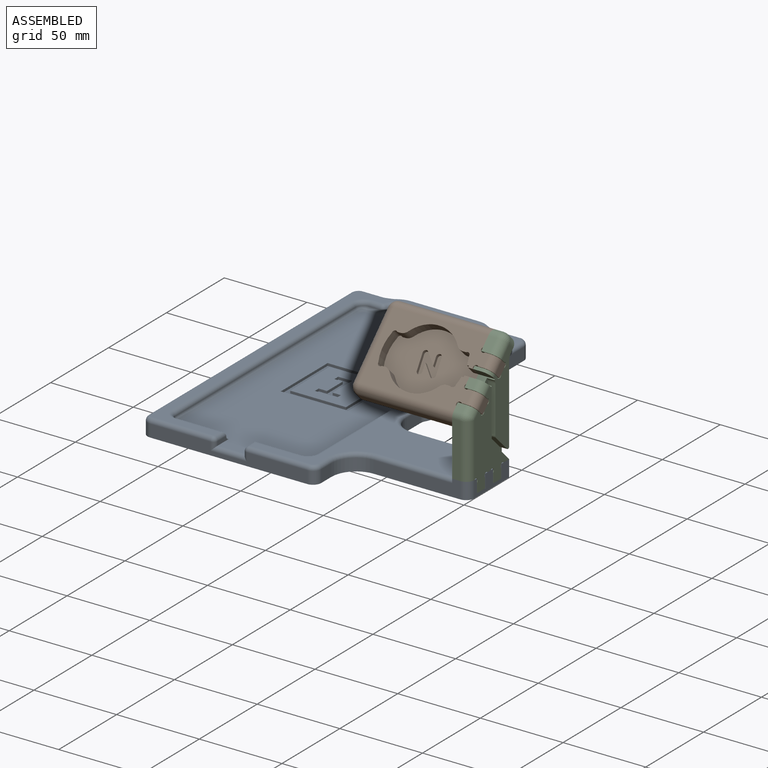
[diagram: assembled view]
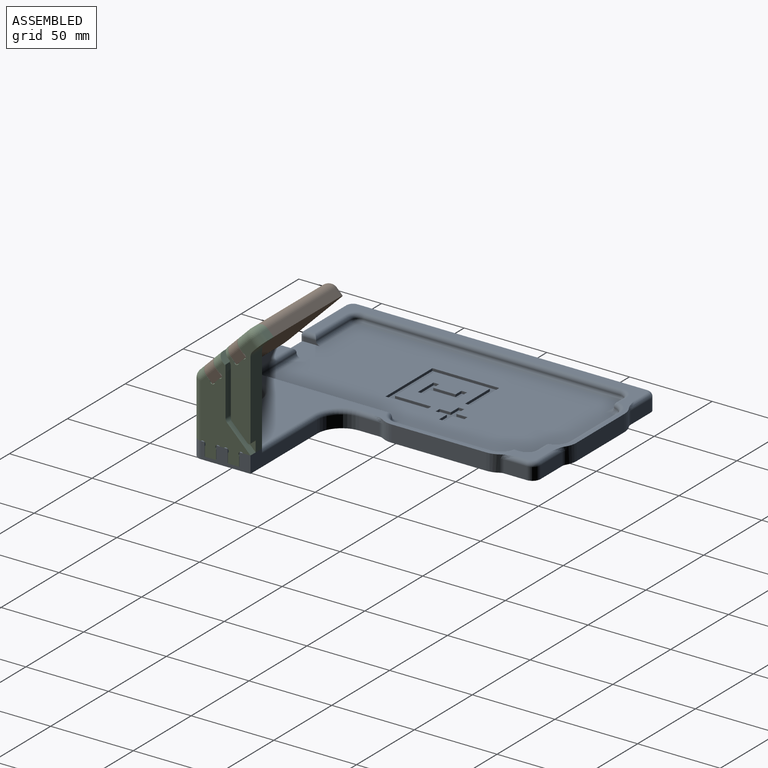
[diagram: assembled view, second angle]
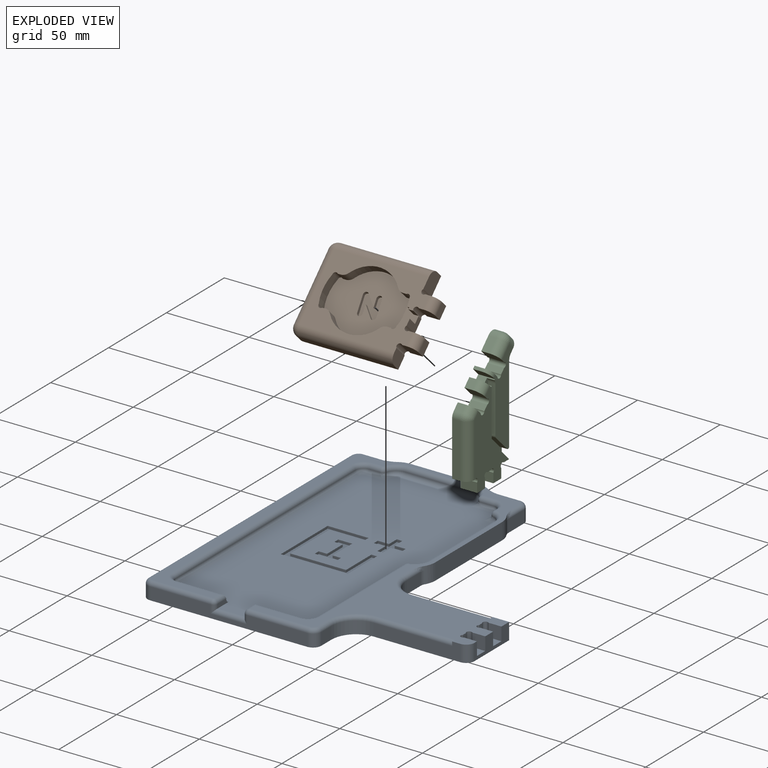
[diagram: exploded view]
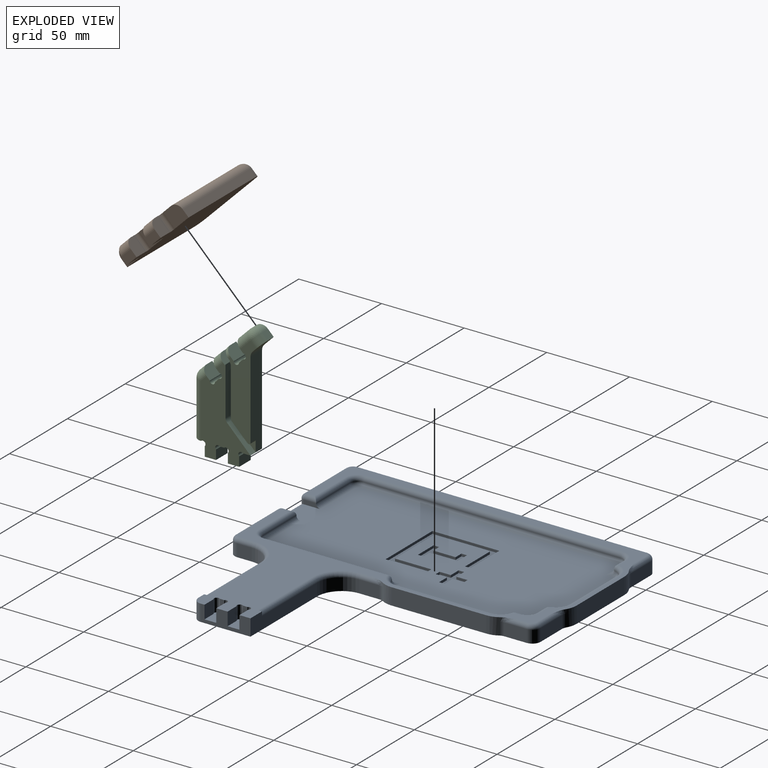
[diagram: exploded view, second angle]
ASSEMBLY  parts=3 mates=2
PART A: 154 faces, bbox 177.9x188.2x15 mm
  f0: plane 177.5x87.5mm, normal (0,0,1), area 13203.5mm2, adj f10,f11,f28,f29,f30,f31,f32,f33
  f1: plane 185x175mm, normal (0,0,1), area 4611.4mm2, adj f2,f3,f4,f5,f6,f7,f8,f9
  f2: plane 8x2.66mm, normal (1,0,0), area 21.3mm2, adj f1,f27,f116,f117
  f3: plane 8x7.83mm, normal (0,-1,0), area 62.6mm2, adj f1,f8,f27,f117
  f4: plane 8x7.83mm, normal (0,1,0), area 62.6mm2, adj f1,f8,f27,f116
  f5: plane 8x2.66mm, normal (1,0,0), area 21.3mm2, adj f1,f26,f114,f115
  f6: plane 8x7.83mm, normal (0,-1,0), area 62.6mm2, adj f1,f8,f26,f115
  f7: plane 8x7.83mm, normal (0,1,0), area 62.6mm2, adj f1,f8,f26,f114
  f8: plane 30x10mm, normal (1,0,0), area 185.6mm2, adj f1,f3,f4,f6,f7,f21,f25,f26
  f9: cylinder r=2.5mm len=47.5mm, axis (-1,0,0), area 186.5mm2, adj f1,f20,f80,f112
  f10: cylinder r=2.5mm len=80mm, axis (0,1,0), area 302.2mm2, adj f0,f12,f34,f60,f66
  f11: cylinder r=2.5mm len=12.5mm, axis (-1,0,0), area 37.2mm2, adj f0,f13,f38,f65,f73
  f12: cylinder r=2.5mm len=75.32mm, axis (0,-1,0), area 295.8mm2, adj f1,f10,f41,f67
  f13: cylinder r=2.5mm len=7.82mm, axis (1,0,0), area 30.7mm2, adj f1,f11,f43,f74
  f14: plane 13.49x7.5mm, normal (1,0,0), area 101.1mm2, adj f25,f95,f100,f106
  f15: plane 17.24x7.5mm, normal (0,1,0), area 129.3mm2, adj f25,f87,f102,f108
  f16: plane 95x7.5mm, normal (0,-1,0), area 602.5mm2, adj f25,f82,f84,f85,f86,f90,f96,f98
  f17: plane 175x7.5mm, normal (-1,0,0), area 1312.5mm2, adj f25,f89,f96,f102
  f18: plane 8.75x7.5mm, normal (1,0,0), area 65.6mm2, adj f19,f25,f81,f98
  f19: cylinder r=15mm len=15mm, axis (0,0,-1), area 176.7mm2, adj f18,f20,f25,f80
  f20: plane 52.5x10mm, normal (0,-1,0), area 406.2mm2, adj f1,f9,f19,f25,f112,f118
  f21: plane 57.5x10mm, normal (0,1,0), area 456.2mm2, adj f1,f8,f22,f25,f91,f113
  f22: cylinder r=15mm len=15mm, axis (0,0,-1), area 176.7mm2, adj f21,f23,f25,f92
  f23: plane 12.24x7.5mm, normal (1,0,0), area 91.8mm2, adj f22,f25,f93,f104
  f24: plane 18.49x7.5mm, normal (0,1,0), area 138.6mm2, adj f25,f94,f100,f110
  f25: plane 187.5x177.5mm, normal (0,0,-1), area 22331mm2, adj f8,f14,f15,f16,f17,f18,f19,f20
  f26: plane 10.54x8.08mm, normal (0,0,1), area 74.9mm2, adj f5,f6,f7,f8,f114,f115
  f27: plane 10.54x8.08mm, normal (0,0,1), area 74.9mm2, adj f2,f3,f4,f8,f116,f117
  f28: plane 10x2.5mm, normal (1,0,0), area 20.1mm2, adj f0,f30,f46,f86
  f29: plane 10x2.5mm, normal (-1,0,0), area 20.1mm2, adj f0,f32,f39,f84
  f30: cylinder r=2.5mm len=29mm, axis (1,0,0), area 113.9mm2, adj f0,f28,f31,f48
  f31: torus R=2.5mm, axis (0,0,1), area 25.2mm2, adj f0,f30,f33,f49
  f32: cylinder r=2.5mm len=29mm, axis (1,0,0), area 113.9mm2, adj f0,f29,f34,f40
  f33: cylinder r=2.5mm len=155mm, axis (0,-1,0), area 608.7mm2, adj f0,f31,f35,f47
  f34: torus R=2.5mm, axis (0,0,1), area 25.2mm2, adj f0,f10,f32,f41
  f35: torus R=2.5mm, axis (0,0,1), area 25.2mm2, adj f0,f33,f37,f45
  f36: cylinder r=2.5mm len=7.5mm, axis (0,1,0), area 17.5mm2, adj f0,f38,f42,f56,f71
  f37: cylinder r=2.5mm len=11.25mm, axis (-1,0,0), area 32.3mm2, adj f0,f35,f44,f61,f78
  f38: torus R=2.5mm, axis (0,0,1), area 25.2mm2, adj f0,f11,f36,f43
  f39: cylinder r=2.5mm len=7.5mm, axis (0,-1,0), area 24.5mm2, adj f1,f29,f40,f83
  f40: cylinder r=2.5mm len=29mm, axis (-1,0,0), area 109mm2, adj f1,f32,f39,f41
  f41: torus R=7.5mm, axis (0,0,1), area 36.4mm2, adj f1,f12,f34,f40
  f42: cylinder r=2.5mm len=2.82mm, axis (0,-1,0), area 11.1mm2, adj f1,f36,f43,f72
  f43: torus R=7.5mm, axis (0,0,1), area 36.4mm2, adj f1,f13,f38,f42
  f44: cylinder r=2.5mm len=6.57mm, axis (1,0,0), area 25.8mm2, adj f1,f37,f45,f79
  f45: torus R=7.5mm, axis (0,0,1), area 36.4mm2, adj f1,f35,f44,f47
  f46: cylinder r=2.5mm len=7.5mm, axis (0,1,0), area 24.5mm2, adj f1,f28,f48,f88
  f47: cylinder r=2.5mm len=155mm, axis (0,1,0), area 608.7mm2, adj f1,f33,f45,f49
  f48: cylinder r=2.5mm len=29mm, axis (-1,0,0), area 109mm2, adj f1,f30,f46,f49
  f49: torus R=7.5mm, axis (0,0,1), area 36.4mm2, adj f1,f31,f47,f48
  f50: cylinder r=12.5mm len=10mm, axis (0,0,1), area 68.4mm2, adj f1,f25,f51,f108,f109
  f51: plane 41.25x10mm, normal (0,1,0), area 412.5mm2, adj f1,f25,f50,f52
  f52: cylinder r=12.5mm len=10mm, axis (0,0,1), area 68.4mm2, adj f1,f25,f51,f110,f111
  f53: plane 57.5x10mm, normal (1,0,0), area 575mm2, adj f1,f25,f54,f55
  f54: cylinder r=12.5mm len=10mm, axis (0,0,1), area 68.4mm2, adj f1,f25,f53,f104,f105
  f55: cylinder r=12.5mm len=10mm, axis (0,0,1), area 68.4mm2, adj f1,f25,f53,f106,f107
  f56: cylinder r=2.5mm len=2.5mm, axis (1,0,0), area 1.8mm2, adj f0,f36,f57,f71
  f57: torus R=5mm, axis (0,0,1), area 38.3mm2, adj f0,f56,f58,f70,f71
  f58: cylinder r=2.5mm len=57.5mm, axis (0,-1,0), area 225.8mm2, adj f0,f57,f59,f69
  f59: torus R=5mm, axis (0,0,1), area 38.3mm2, adj f0,f58,f60,f66,f68
  f60: cylinder r=2.5mm len=2.5mm, axis (-1,0,0), area 1.8mm2, adj f0,f10,f59,f66
  f61: cylinder r=2.5mm len=2.5mm, axis (0,1,0), area 1.8mm2, adj f0,f37,f62,f78
  f62: torus R=5mm, axis (0,0,1), area 38.3mm2, adj f0,f61,f63,f77,f78
  f63: cylinder r=2.5mm len=41.25mm, axis (1,0,0), area 162mm2, adj f0,f62,f64,f76
  f64: torus R=5mm, axis (0,0,1), area 38.3mm2, adj f0,f63,f65,f73,f75
  f65: cylinder r=2.5mm len=2.5mm, axis (0,-1,0), area 1.8mm2, adj f0,f11,f64,f73
  f66: bspline ~4.92x4.19mm, area 9.5mm2, adj f10,f59,f60,f67
  f67: sphere r=2.5mm, area 12.2mm2, adj f12,f66,f68
  f68: torus R=10mm, axis (0,0,1), area 43.5mm2, adj f1,f59,f67,f69
  f69: cylinder r=2.5mm len=57.5mm, axis (0,-1,0), area 225.8mm2, adj f1,f58,f68,f70
  f70: torus R=10mm, axis (0,0,1), area 43.5mm2, adj f1,f57,f69,f72
  f71: bspline ~4.92x4.19mm, area 9.5mm2, adj f36,f56,f57,f72
  f72: sphere r=2.5mm, area 12.2mm2, adj f42,f70,f71
  f73: bspline ~4.92x4.19mm, area 9.5mm2, adj f11,f64,f65,f74
  f74: sphere r=2.5mm, area 12.2mm2, adj f13,f73,f75
  f75: torus R=10mm, axis (0,0,1), area 43.5mm2, adj f1,f64,f74,f76
  f76: cylinder r=2.5mm len=41.25mm, axis (1,0,0), area 162mm2, adj f1,f63,f75,f77
  f77: torus R=10mm, axis (0,0,1), area 43.5mm2, adj f1,f62,f76,f79
  f78: bspline ~4.92x4.19mm, area 9.5mm2, adj f37,f61,f62,f79
  f79: sphere r=2.5mm, area 12.2mm2, adj f44,f77,f78
  f80: torus R=17.5mm, axis (0,0,1), area 98.1mm2, adj f1,f9,f19,f81
  f81: cylinder r=2.5mm len=8.75mm, axis (0,-1,0), area 34.4mm2, adj f1,f18,f80,f99
  f82: cylinder r=2.5mm len=36.5mm, axis (-1,0,0), area 143.3mm2, adj f1,f16,f83,f99
  f83: sphere r=2.5mm, area 9.8mm2, adj f39,f82,f84
  f84: cylinder r=2.5mm len=5mm, axis (0,0,1), area 14.7mm2, adj f16,f29,f83,f85
  f85: cylinder r=2.5mm len=22mm, axis (-1,0,0), area 76.6mm2, adj f0,f16,f84,f86
  f86: cylinder r=2.5mm len=5mm, axis (0,0,-1), area 14.7mm2, adj f16,f28,f85,f88
  f87: cylinder r=2.5mm len=17.24mm, axis (1,0,0), area 54.3mm2, adj f1,f15,f103,f109
  f88: sphere r=2.5mm, area 13.4mm2, adj f46,f86,f90
  f89: cylinder r=2.5mm len=175mm, axis (0,1,0), area 687.2mm2, adj f1,f17,f97,f103
  f90: cylinder r=2.5mm len=36.5mm, axis (-1,0,0), area 143.3mm2, adj f1,f16,f88,f97
  f91: cylinder r=2.5mm len=47.5mm, axis (1,0,0), area 186.5mm2, adj f1,f21,f92,f113
  f92: torus R=17.5mm, axis (0,0,1), area 98.1mm2, adj f1,f22,f91,f93
  f93: cylinder r=2.5mm len=12.24mm, axis (0,-1,0), area 34.7mm2, adj f1,f23,f92,f105
  f94: cylinder r=2.5mm len=18.49mm, axis (1,0,0), area 59.2mm2, adj f1,f24,f101,f111
  f95: cylinder r=2.5mm len=13.49mm, axis (0,-1,0), area 39.6mm2, adj f1,f14,f101,f107
  f96: cylinder r=5mm len=7.5mm, axis (0,0,-1), area 58.9mm2, adj f16,f17,f25,f97
  f97: torus R=2.5mm, axis (0,0,1), area 25.2mm2, adj f1,f89,f90,f96
  f98: cylinder r=5mm len=7.5mm, axis (0,0,1), area 58.9mm2, adj f16,f18,f25,f99
  f99: torus R=2.5mm, axis (0,0,1), area 25.2mm2, adj f1,f81,f82,f98
  f100: cylinder r=5mm len=7.5mm, axis (0,0,-1), area 58.9mm2, adj f14,f24,f25,f101
  f101: torus R=2.5mm, axis (0,0,1), area 25.2mm2, adj f1,f94,f95,f100
  f102: cylinder r=5mm len=7.5mm, axis (0,0,1), area 58.9mm2, adj f15,f17,f25,f103
  f103: torus R=2.5mm, axis (0,0,1), area 25.2mm2, adj f1,f87,f89,f102
  f104: cylinder r=5mm len=7.5mm, axis (0,0,1), area 20.3mm2, adj f23,f25,f54,f105
  f105: bspline ~9.82x7.96mm, area 13.2mm2, adj f1,f54,f93,f104
  f106: cylinder r=5mm len=7.5mm, axis (0,0,1), area 20.3mm2, adj f14,f25,f55,f107
  f107: bspline ~9.82x7.96mm, area 13.2mm2, adj f1,f55,f95,f106
  f108: cylinder r=5mm len=7.5mm, axis (0,0,1), area 20.3mm2, adj f15,f25,f50,f109
  f109: bspline ~9.82x7.96mm, area 13.2mm2, adj f1,f50,f87,f108
  f110: cylinder r=5mm len=7.5mm, axis (0,0,1), area 20.3mm2, adj f24,f25,f52,f111
  f111: bspline ~9.82x7.96mm, area 13.2mm2, adj f1,f52,f94,f110
  f112: plane 2.5x2.5mm, normal (-1,0,0), area 1.3mm2, adj f1,f9,f20
  f113: plane 2.5x2.5mm, normal (-1,0,0), area 1.3mm2, adj f1,f21,f91
  f114: cylinder r=1.59mm len=8mm, axis (0,0,-1), area 39.9mm2, adj f1,f5,f7,f26
  f115: cylinder r=1.59mm len=8mm, axis (0,0,-1), area 39.9mm2, adj f1,f5,f6,f26
  f116: cylinder r=1.59mm len=8mm, axis (0,0,-1), area 39.9mm2, adj f1,f2,f4,f27
  f117: cylinder r=1.59mm len=8mm, axis (0,0,-1), area 39.9mm2, adj f1,f2,f3,f27
  f118: cylinder r=5mm len=10mm, axis (0,0,-1), area 78.5mm2, adj f1,f8,f20,f25
  f119: plane 24.75x1.5mm, normal (0,-1,0), area 37.1mm2, adj f0,f120,f128,f129
  f120: plane 40.5x1.5mm, normal (1,0,0), area 60.8mm2, adj f0,f119,f121,f129
  f121: plane 40.5x1.5mm, normal (0,1,0), area 60.7mm2, adj f0,f120,f122,f129
  f122: plane 25.31x1.5mm, normal (-1,0,0), area 38mm2, adj f0,f121,f123,f129
  f123: plane 3.38x1.5mm, normal (0,-1,0), area 5.1mm2, adj f0,f122,f124,f129
  f124: plane 21.94x1.5mm, normal (1,0,0), area 32.9mm2, adj f0,f123,f125,f129
  f125: plane 33.75x1.5mm, normal (0,-1,0), area 50.6mm2, adj f0,f124,f126,f129
  f126: plane 33.75x1.5mm, normal (-1,0,0), area 50.6mm2, adj f0,f125,f127,f129
  f127: plane 21.38x1.5mm, normal (0,1,0), area 32.1mm2, adj f0,f126,f128,f129
  f128: plane 3.38x1.5mm, normal (-1,0,0), area 5.1mm2, adj f0,f119,f127,f129
  f129: plane 40.5x40.5mm, normal (0,0,1), area 408.2mm2, adj f119,f120,f121,f122,f123,f124,f125,f126
  f130: plane 8.44x1.5mm, normal (0,-1,0), area 12.7mm2, adj f0,f131,f139,f140
  f131: plane 3.38x1.5mm, normal (1,0,0), area 5.1mm2, adj f0,f130,f132,f140
  f132: plane 5.06x1.5mm, normal (0,1,0), area 7.6mm2, adj f0,f131,f133,f140
  f133: plane 13.5x1.5mm, normal (1,0,0), area 20.3mm2, adj f0,f132,f134,f140
  f134: plane 5.06x1.5mm, normal (0,-1,0), area 7.6mm2, adj f0,f133,f135,f140
  f135: plane 3.38x1.5mm, normal (1,0,0), area 5.1mm2, adj f0,f134,f136,f140
  f136: plane 13.5x1.5mm, normal (0,1,0), area 20.3mm2, adj f0,f135,f137,f140
  f137: plane 3.38x1.5mm, normal (-1,0,0), area 5.1mm2, adj f0,f136,f138,f140
  f138: plane 5.06x1.5mm, normal (0,-1,0), area 7.6mm2, adj f0,f137,f139,f140
  f139: plane 16.88x1.5mm, normal (-1,0,0), area 25.3mm2, adj f0,f130,f138,f140
  f140: plane 20.25x13.5mm, normal (0,0,1), area 119.6mm2, adj f130,f131,f132,f133,f134,f135,f136,f137
  f141: plane 6.75x1.5mm, normal (-1,0,0), area 10.1mm2, adj f0,f142,f152,f153
  f142: plane 3.38x1.5mm, normal (0,-1,0), area 5.1mm2, adj f0,f141,f143,f153
  f143: plane 6.75x1.5mm, normal (1,0,0), area 10.1mm2, adj f0,f142,f144,f153
  f144: plane 6.75x1.5mm, normal (0,-1,0), area 10.1mm2, adj f0,f143,f145,f153
  f145: plane 3.38x1.5mm, normal (1,0,0), area 5.1mm2, adj f0,f144,f146,f153
  f146: plane 6.75x1.5mm, normal (0,1,0), area 10.1mm2, adj f0,f145,f147,f153
  f147: plane 6.75x1.5mm, normal (1,0,0), area 10.1mm2, adj f0,f146,f148,f153
  f148: plane 3.38x1.5mm, normal (0,1,0), area 5.1mm2, adj f0,f147,f149,f153
  f149: plane 6.75x1.5mm, normal (-1,0,0), area 10.1mm2, adj f0,f148,f150,f153
  f150: plane 6.75x1.5mm, normal (0,1,0), area 10.1mm2, adj f0,f149,f151,f153
  f151: plane 3.38x1.5mm, normal (-1,0,0), area 5.1mm2, adj f0,f150,f152,f153
  f152: plane 6.75x1.5mm, normal (0,-1,0), area 10.1mm2, adj f0,f141,f151,f153
  f153: plane 16.88x16.88mm, normal (0,0,1), area 102.5mm2, adj f141,f142,f143,f144,f145,f146,f147,f148
PART B: 62 faces, bbox 72.5x42.1x42.1 mm
  f0: plane 62.5x30mm, normal (0,-0.71,0.71), area 1144.2mm2, adj f1,f2,f3,f4,f5,f6,f7,f8
  f1: plane 4.6x4.6mm, normal (0,0.71,0.71), area 13.7mm2, adj f0,f31,f40,f50
  f2: cylinder r=24.75mm len=7.91mm, axis (0,-0.71,0.71), area 31.3mm2, adj f0,f31,f41,f50
  f3: cylinder r=24.75mm len=16.33mm, axis (0,-0.71,0.71), area 110mm2, adj f0,f31,f48,f49
  f4: plane 4.6x4.6mm, normal (0,0.71,0.71), area 11.7mm2, adj f0,f31,f38,f49
  f5: plane 4.6x4.6mm, normal (0,-0.71,-0.71), area 11.7mm2, adj f0,f31,f37,f48
  f6: cylinder r=24.75mm len=7.91mm, axis (0,-0.71,0.71), area 31.3mm2, adj f0,f31,f34,f47
  f7: plane 4.6x4.6mm, normal (0,-0.71,-0.71), area 13.7mm2, adj f0,f31,f35,f47
  f8: plane 12.56x10.48mm, normal (1,0,0), area 72.2mm2, adj f0,f16,f22,f23,f46
  f9: plane 7.76x7.07mm, normal (0,-0.71,-0.71), area 72.2mm2, adj f0,f16,f17,f30,f46
  f10: plane 12.84x9.81mm, normal (1,0,0), area 53.7mm2, adj f0,f16,f31,f32,f44,f45
  f11: plane 7.76x7.07mm, normal (0,0.71,0.71), area 72.2mm2, adj f0,f16,f17,f30,f45
  f12: plane 4.6x4.6mm, normal (0,-0.71,-0.71), area 18.4mm2, adj f0,f31,f33,f44
  f13: plane 7.76x7.07mm, normal (0,-0.71,-0.71), area 72.2mm2, adj f0,f16,f18,f29,f44
  f14: plane 15.44x13.37mm, normal (1,0,0), area 112.9mm2, adj f0,f16,f19,f21,f43
  f15: plane 7.76x7.07mm, normal (0,0.71,0.71), area 72.2mm2, adj f0,f16,f18,f29,f43
  f16: plane 72.5x37.07mm, normal (0,0.71,-0.71), area 3417.2mm2, adj f8,f9,f10,f11,f13,f14,f15,f17
  f17: plane 9.09x9.09mm, normal (1,0,0), area 39.2mm2, adj f9,f11,f16,f30
  f18: plane 9.09x9.09mm, normal (1,0,0), area 39.2mm2, adj f13,f15,f16,f29
  f19: plane 57.5x3.54mm, normal (0,0.71,0.71), area 287.5mm2, adj f14,f16,f21,f28
  f20: plane 33.54x33.54mm, normal (-1,0,0), area 212.1mm2, adj f16,f24,f26,f28
  f21: cylinder r=5mm len=57.5mm, axis (-1,0,0), area 451.6mm2, adj f0,f14,f19,f27
  f22: plane 57.5x3.54mm, normal (0,-0.71,-0.71), area 287.5mm2, adj f8,f16,f23,f24
  f23: cylinder r=5mm len=57.5mm, axis (1,0,0), area 451.6mm2, adj f0,f8,f22,f25
  f24: cylinder r=5mm len=7.07mm, axis (0,0.71,-0.71), area 39.3mm2, adj f16,f20,f22,f25
  f25: sphere r=5mm, area 39.3mm2, adj f23,f24,f26
  f26: cylinder r=5mm len=33.54mm, axis (0,-0.71,-0.71), area 333.2mm2, adj f0,f20,f25,f27
  f27: sphere r=5mm, area 39.3mm2, adj f21,f26,f28
  f28: cylinder r=5mm len=7.07mm, axis (0,-0.71,0.71), area 39.3mm2, adj f16,f19,f20,f27
  f29: cylinder r=5mm len=9.09mm, axis (0,0.71,0.71), area 61.7mm2, adj f0,f13,f15,f18
  f30: cylinder r=5mm len=9.09mm, axis (0,0.71,0.71), area 61.7mm2, adj f0,f9,f11,f17
  f31: plane 53.5x26.52mm, normal (0,-0.71,0.71), area 1261.3mm2, adj f1,f2,f3,f4,f5,f6,f7,f10
  f32: plane 4.6x4.6mm, normal (0,0.71,0.71), area 19.5mm2, adj f0,f10,f31,f42
  f33: plane 5.3x5.3mm, normal (-1,0,0), area 6.5mm2, adj f0,f12,f31,f34
  f34: plane 4.6x4.6mm, normal (0,-0.71,-0.71), area 7.9mm2, adj f0,f6,f31,f33
  f35: cylinder r=5mm len=5.97mm, axis (0,-0.71,0.71), area 29.7mm2, adj f0,f7,f31,f36
  f36: cylinder r=18.75mm len=29.7mm, axis (0,-0.71,0.71), area 222.8mm2, adj f0,f31,f35,f37
  f37: cylinder r=5mm len=5.97mm, axis (0,-0.71,0.71), area 29.7mm2, adj f0,f5,f31,f36
  f38: cylinder r=5mm len=5.97mm, axis (0,-0.71,0.71), area 29.7mm2, adj f0,f4,f31,f39
  f39: cylinder r=18.75mm len=29.7mm, axis (0,-0.71,0.71), area 222.8mm2, adj f0,f31,f38,f40
  f40: cylinder r=5mm len=5.97mm, axis (0,-0.71,0.71), area 29.7mm2, adj f0,f1,f31,f39
  f41: plane 4.6x4.6mm, normal (0,0.71,0.71), area 7.9mm2, adj f0,f2,f31,f42
  f42: plane 5.3x5.3mm, normal (-1,0,0), area 6.5mm2, adj f0,f31,f32,f41
  f43: cylinder r=1.59mm len=8.99mm, axis (0,0.71,-0.71), area 49.9mm2, adj f0,f14,f15,f16
  f44: cylinder r=1.59mm len=8.99mm, axis (0,0.71,-0.71), area 48.1mm2, adj f0,f10,f12,f13,f16,f31
  f45: cylinder r=1.59mm len=8.99mm, axis (0,0.71,-0.71), area 49.9mm2, adj f0,f10,f11,f16
  f46: cylinder r=1.59mm len=8.99mm, axis (0,0.71,-0.71), area 49.9mm2, adj f0,f8,f9,f16
  f47: cylinder r=1.59mm len=5.94mm, axis (0,0.71,-0.71), area 25mm2, adj f0,f6,f7,f31
  f48: cylinder r=1.59mm len=5.77mm, axis (0,0.71,-0.71), area 24.8mm2, adj f0,f3,f5,f31
  f49: cylinder r=1.59mm len=5.77mm, axis (0,0.71,-0.71), area 24.8mm2, adj f0,f3,f4,f31
  f50: cylinder r=1.59mm len=5.94mm, axis (0,0.71,-0.71), area 25mm2, adj f0,f1,f2,f31
  f51: plane 4.97x4.97mm, normal (0.99,0.1,0.1), area 10.2mm2, adj f31,f52,f60,f61
  f52: plane 6.14x5.91mm, normal (-0.72,-0.49,-0.49), area 17.7mm2, adj f31,f51,f53,f61
  f53: cylinder r=1.6mm len=2.75mm, axis (0,-0.71,0.71), area 8mm2, adj f31,f52,f54,f61
  f54: plane 8.42x8.42mm, normal (0.99,0.1,0.1), area 20mm2, adj f31,f53,f55,f61
  f55: cylinder r=1.6mm len=3.18mm, axis (0,-0.71,0.71), area 10.1mm2, adj f31,f54,f56,f61
  f56: plane 4.97x4.97mm, normal (-0.99,-0.1,-0.1), area 10.2mm2, adj f31,f55,f57,f61
  f57: plane 6.14x5.91mm, normal (0.72,0.49,0.49), area 17.7mm2, adj f31,f56,f58,f61
  f58: cylinder r=1.6mm len=2.75mm, axis (0,-0.71,0.71), area 8mm2, adj f31,f57,f59,f61
  f59: plane 8.42x8.42mm, normal (-0.99,-0.1,-0.1), area 20mm2, adj f31,f58,f60,f61
  f60: cylinder r=1.6mm len=3.18mm, axis (0,-0.71,0.71), area 10.1mm2, adj f31,f51,f59,f61
  f61: plane 12.76x9.27mm, normal (0,-0.71,0.71), area 106.8mm2, adj f51,f52,f53,f54,f55,f56,f57,f58
PART C: 57 faces, bbox 10x42.1x75.9 mm
  f0: plane 5x4.22mm, normal (0,-0.71,0.71), area 29.8mm2, adj f3,f4,f14,f37
  f1: plane 54.34x30mm, normal (1,0,0), area 774.9mm2, adj f3,f5,f6,f7,f8,f9,f10,f11
  f2: plane 56.99x16.94mm, normal (1,0,0), area 523.7mm2, adj f15,f16,f17,f22,f24,f28,f30,f32
  f3: cylinder r=5mm len=7.75mm, axis (0,-0.71,-0.71), area 46.8mm2, adj f0,f1,f14,f37
  f4: plane 75.93x42.07mm, normal (-1,0,0), area 1788mm2, adj f0,f5,f6,f7,f8,f9,f10,f11
  f5: plane 10x4.58mm, normal (0,0,-1), area 45.8mm2, adj f1,f4,f24,f42,f56
  f6: plane 10x5.76mm, normal (0,1,0), area 57.5mm2, adj f1,f4,f20,f56
  f7: plane 10x2.66mm, normal (0,0,-1), area 26.6mm2, adj f1,f4,f54,f55
  f8: plane 10x5.76mm, normal (0,-1,0), area 57.5mm2, adj f1,f4,f20,f55
  f9: plane 10x5.76mm, normal (0,1,0), area 57.5mm2, adj f1,f4,f19,f54
  f10: plane 10x5.08mm, normal (0,0,-1), area 45.4mm2, adj f1,f4,f23,f35,f53
  f11: plane 10x5.76mm, normal (0,-1,0), area 57.5mm2, adj f1,f4,f19,f53
  f12: plane 10x2.59mm, normal (0,-0.71,0.71), area 36.6mm2, adj f1,f4,f51,f52
  f13: plane 10x5.48mm, normal (0,0.71,0.71), area 72.2mm2, adj f1,f4,f25,f33,f52
  f14: plane 10x5.48mm, normal (0,-0.71,-0.71), area 72.2mm2, adj f0,f1,f3,f4,f51
  f15: plane 10x2.59mm, normal (0,-0.71,0.71), area 36.6mm2, adj f2,f4,f49,f50
  f16: plane 10x5.48mm, normal (0,0.71,0.71), area 72.2mm2, adj f2,f4,f21,f22,f50
  f17: plane 10x5.48mm, normal (0,-0.71,-0.71), area 72.2mm2, adj f2,f4,f18,f30,f49
  f18: plane 6.31x6.31mm, normal (0,-0.71,0.71), area 44.6mm2, adj f4,f17,f27,f30
  f19: plane 10x6.85mm, normal (0,0,-1), area 68.5mm2, adj f1,f4,f9,f11
  f20: plane 10x6.85mm, normal (0,0,-1), area 68.5mm2, adj f1,f4,f6,f8
  f21: plane 5x1.34mm, normal (0,-0.71,0.71), area 9.4mm2, adj f4,f16,f22,f38
  f22: cylinder r=5mm len=5mm, axis (0,-0.71,-0.71), area 14.8mm2, adj f2,f16,f21,f38
  f23: plane 32.93x5mm, normal (0,-1,0), area 164.6mm2, adj f4,f10,f26,f35
  f24: plane 53.79x10mm, normal (0,1,0), area 506.6mm2, adj f2,f4,f5,f36,f43,f48
  f25: plane 5x3.43mm, normal (0,-0.71,0.71), area 24.3mm2, adj f4,f13,f26,f33
  f26: cylinder r=5mm len=5mm, axis (-1,0,0), area 19.6mm2, adj f4,f23,f25,f34
  f27: cylinder r=5mm len=7.07mm, axis (-1,0,0), area 39.3mm2, adj f4,f18,f29,f31
  f28: plane 10x5.61mm, normal (0,0.71,-0.71), area 73.9mm2, adj f2,f4,f29,f32,f36
  f29: plane 5x3.54mm, normal (0,0.71,0.71), area 25mm2, adj f4,f27,f28,f32
  f30: cylinder r=5mm len=9.85mm, axis (0,-0.71,-0.71), area 70.1mm2, adj f2,f17,f18,f31
  f31: sphere r=5mm, area 39.3mm2, adj f27,f30,f32
  f32: cylinder r=5mm len=7.07mm, axis (0,0.71,-0.71), area 39.3mm2, adj f2,f28,f29,f31
  f33: cylinder r=5mm len=6.97mm, axis (0,-0.71,-0.71), area 38.1mm2, adj f1,f13,f25,f34
  f34: sphere r=5mm, area 19.6mm2, adj f26,f33,f35
  f35: cylinder r=5mm len=32.93mm, axis (0,0,-1), area 258.6mm2, adj f1,f10,f23,f34
  f36: cylinder r=5mm len=10mm, axis (1,0,0), area 39.3mm2, adj f2,f4,f24,f28
  f37: plane 10x4.6mm, normal (0,0.71,0.71), area 59.6mm2, adj f0,f1,f3,f4,f39
  f38: plane 10x4.6mm, normal (0,-0.71,-0.71), area 59.6mm2, adj f2,f4,f21,f22,f39
  f39: plane 10x3.18mm, normal (0,-0.71,0.71), area 30.6mm2, adj f1,f2,f4,f37,f38,f40,f47,f48
  f40: plane 29.34x4.5mm, normal (0,1,0), area 132mm2, adj f1,f39,f41,f48
  f41: cylinder r=3.2mm len=4.5mm, axis (1,0,0), area 11.3mm2, adj f1,f40,f42,f48
  f42: plane 14.13x14.13mm, normal (0,0.71,0.71), area 89.9mm2, adj f1,f5,f41,f48
  f43: cylinder r=1mm len=4.5mm, axis (1,0,0), area 10.6mm2, adj f2,f24,f44,f48
  f44: plane 9.58x9.58mm, normal (0,-0.71,-0.71), area 61mm2, adj f2,f43,f45,f48
  f45: cylinder r=2mm len=4.5mm, axis (1,0,0), area 7.1mm2, adj f2,f44,f46,f48
  f46: plane 28.51x4.5mm, normal (0,-1,0), area 128.3mm2, adj f2,f45,f47,f48
  f47: cylinder r=3.2mm len=4.5mm, axis (1,0,0), area 11.3mm2, adj f2,f39,f46,f48
  f48: plane 48x15.07mm, normal (1,0,0), area 162.1mm2, adj f24,f39,f40,f41,f42,f43,f44,f45
  f49: cylinder r=1.59mm len=10mm, axis (-1,0,0), area 49.9mm2, adj f2,f4,f15,f17
  f50: cylinder r=1.59mm len=10mm, axis (-1,0,0), area 49.9mm2, adj f2,f4,f15,f16
  f51: cylinder r=1.59mm len=10mm, axis (-1,0,0), area 49.9mm2, adj f1,f4,f12,f14
  f52: cylinder r=1.59mm len=10mm, axis (-1,0,0), area 49.9mm2, adj f1,f4,f12,f13
  f53: cylinder r=1.59mm len=10mm, axis (-1,0,0), area 49.9mm2, adj f1,f4,f10,f11
  f54: cylinder r=1.59mm len=10mm, axis (-1,0,0), area 49.9mm2, adj f1,f4,f7,f9
  f55: cylinder r=1.59mm len=10mm, axis (-1,0,0), area 49.9mm2, adj f1,f4,f7,f8
  f56: cylinder r=1.59mm len=10mm, axis (-1,0,0), area 49.9mm2, adj f1,f4,f5,f6
PLACE A t=(-10.7,4.62,0)mm
PLACE B t=(-10.7,4.62,0)mm
PLACE C t=(-10.7,4.62,0)mm
MATE fastened A.f26 <-> C.f19  axis (0,0,1) through (114.3,-48.38,2)mm
MATE fastened B.f16 <-> C.f15  axis (0,0.71,-0.71) through (114.3,-29.78,60.2)mm
